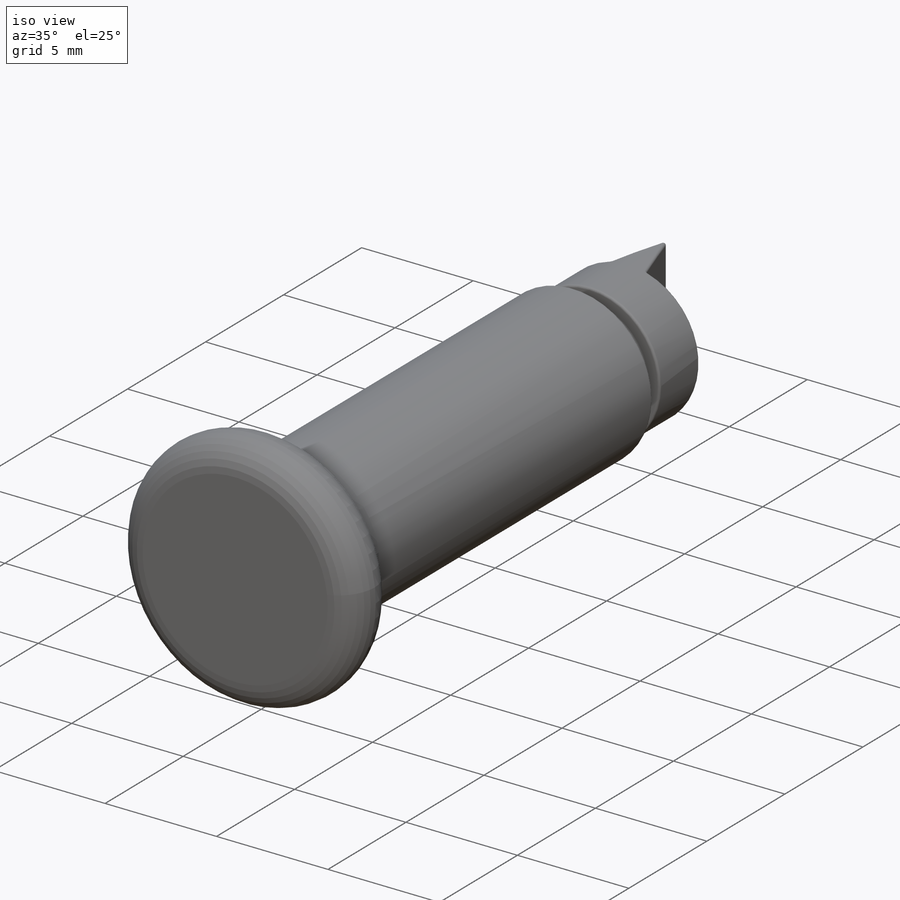
[diagram: iso view]
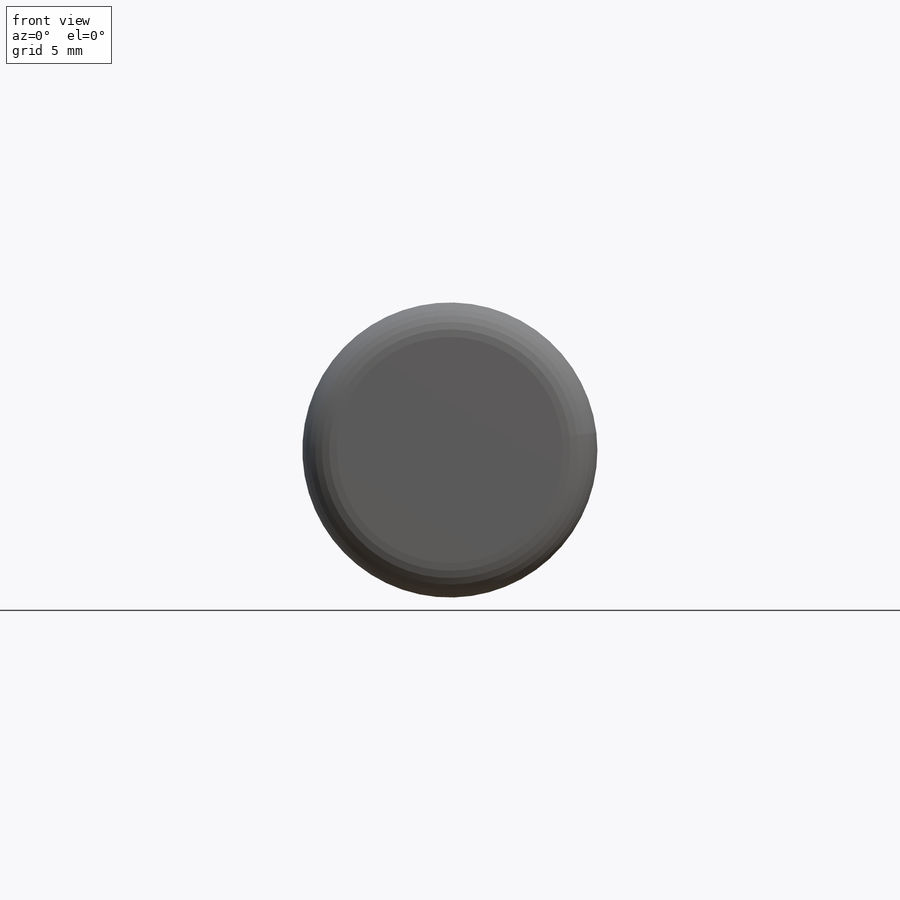
[diagram: front view]
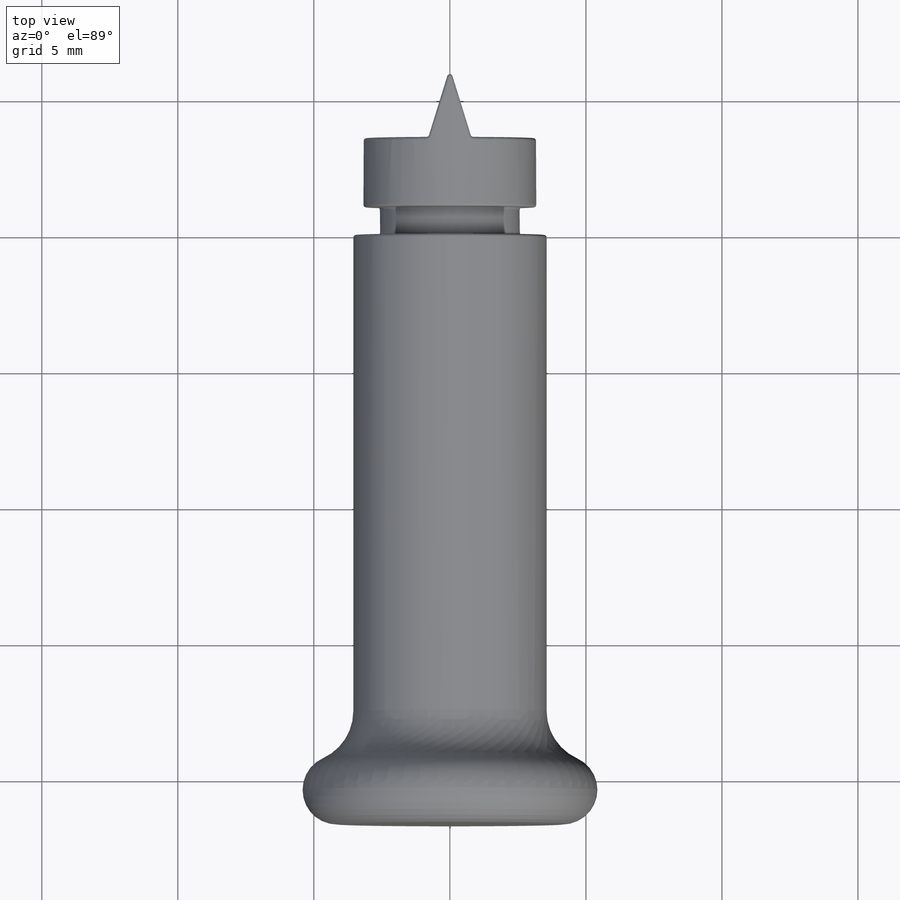
[diagram: top view]
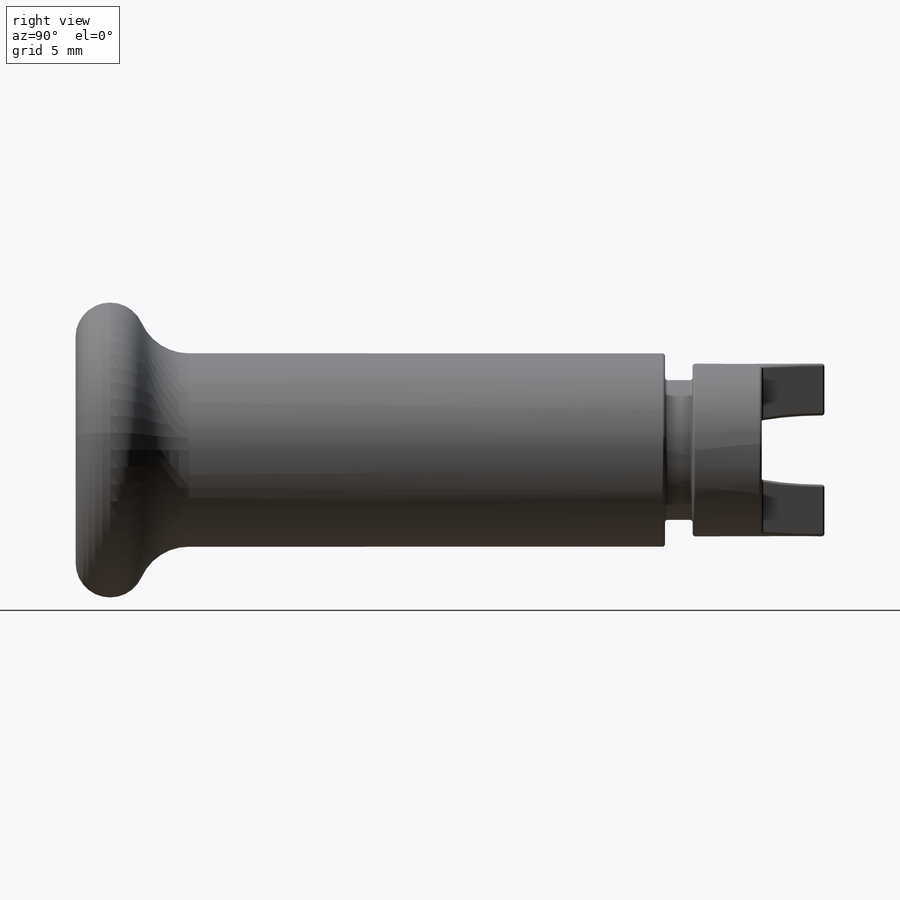
[diagram: right view]
SOLIDWORKS PART (.sldprt)
format: sldprt  version: not decoded by parser v0  size: 397,312 bytes
history: native  units: mm
features: sketch x6, extrude x5, fillet x5, material x1, cut_extrude x1 (+16 scaffold rows collapsed)
feature tree (34):
  scaffold x16  (default folders/planes/origin — collapsed)
  material  "Material <not specified>"
  sketch  "Sketch1"  dims[D1=7.112mm]
  extrude  "Extrude1"  Depth=21.6662mm
  sketch  "Sketch2"  dims[D1=10.8458mm]
  extrude  "Extrude2"  Depth=2.54mm
  fillet  "Fillet1"  Radius=1.27mm
  fillet  "Fillet2"  Radius=1.905mm
  sketch  "Sketch3"  dims[D1=5.1435mm]
  extrude  "Extrude3"  Depth=1.016mm
  sketch  "Sketch4"  dims[D1=6.35mm]
  extrude  "Extrude4"  Depth=2.54mm
  sketch  "Sketch5"  dims[D1=0.7874mm D2=2.54mm D3=~2.659248mm]
  extrude  "Extrude5"  [1 undecoded]
  sketch  "Sketch6"  dims[D1=2.54mm]
  cut_extrude  "Extrude6"  Depth=6.35mm
  fillet  "Fillet3"  Radius=0.099219mm
  fillet  "Fillet4"  Radius=0.099219mm
  fillet  "Fillet5"  Radius=0.099219mm
decode coverage: 16 of 17 modeling features carry decoded parameters
note: ~ marks probable driven/reference dimensions
note: 1 parameter value undecoded
note: suppression state not decoded; provenance and decode notes live in map.json
